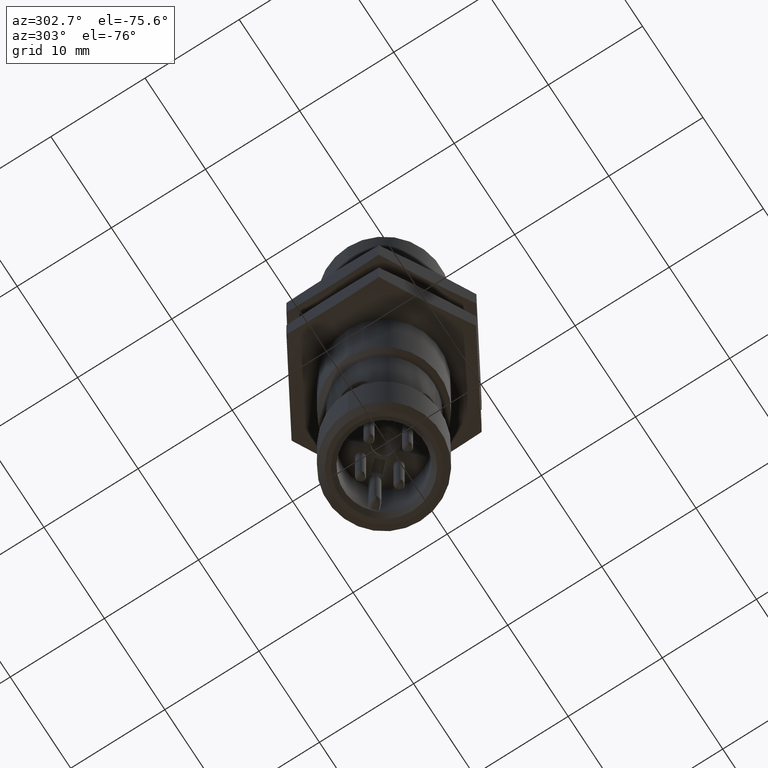
[diagram: clean part render]
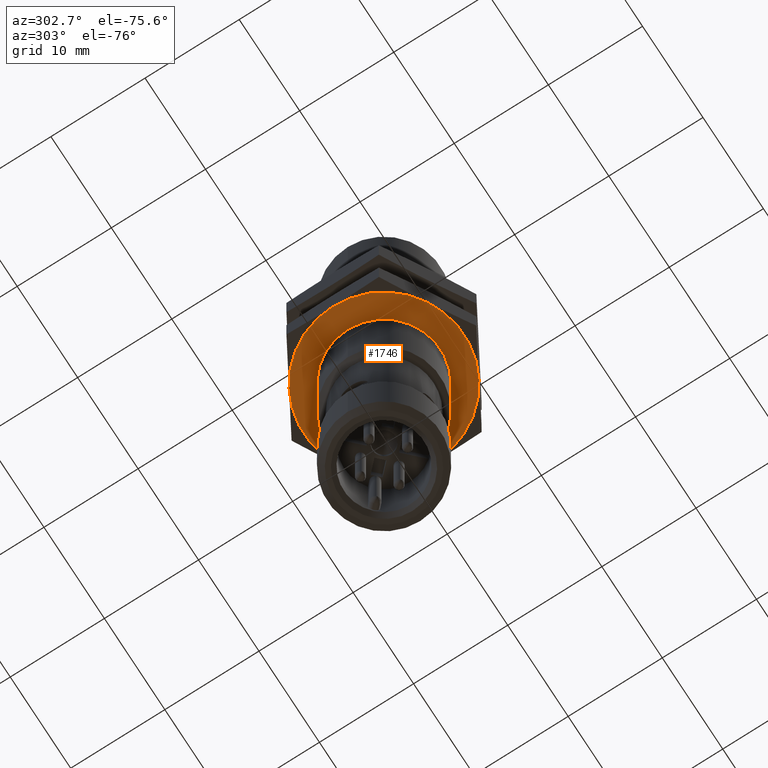
[diagram: same view with one face highlighted and labeled with its STEP entity id]
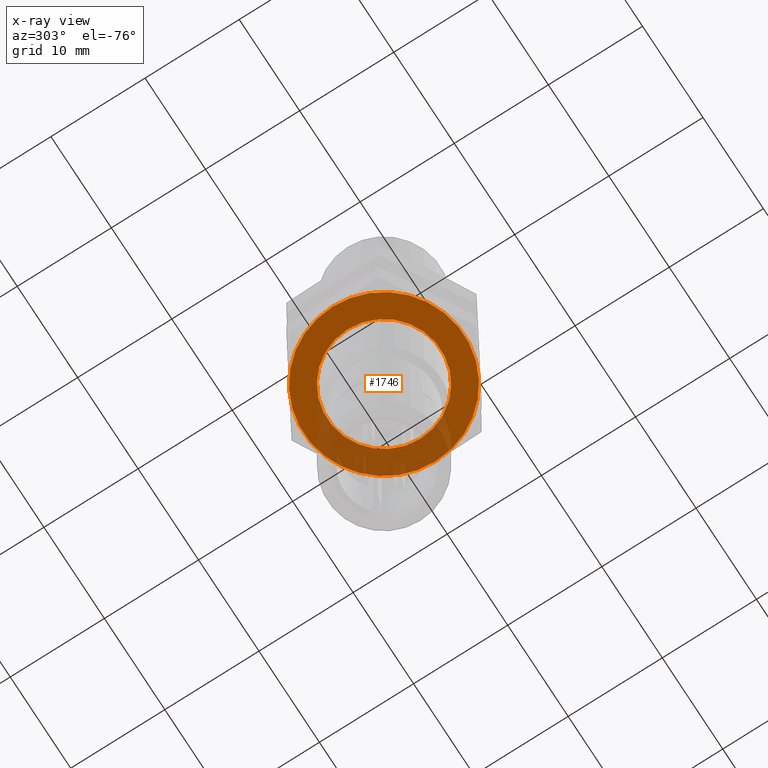
[diagram: x-ray of the same camera — body ghosted, the highlighted face saturated]
A machine part, auxiliary view. The second image highlights one B-rep face of the part: STEP entity #1746.
The next image is the same camera in x-ray: the body ghosted, the highlighted face saturated — about 31% of this face is hidden behind the body in this view.
In plain terms, the highlighted planar face has unit normal (0, 0, -1).
Its self-contained STEP definition (entity closure, byte-faithful):
#14 = CARTESIAN_POINT ( 'NONE',  ( 101.0540168275933581, -35.62113826423676244, -25.46057871481036372 ) ) ;
#29 = CARTESIAN_POINT ( 'NONE',  ( 101.0540168275933581, -35.62113826423676244, -25.12593304551902662 ) ) ;
#143 = AXIS2_PLACEMENT_3D ( 'NONE', #1288, #2727, #2245 ) ;
#150 = CIRCLE ( 'NONE', #926, 0.3346456692913279407 ) ;
#191 = CIRCLE ( 'NONE', #1329, 0.3346456692913279407 ) ;
#227 = EDGE_CURVE ( 'NONE', #2512, #1180, #191, .T. ) ;
#252 = AXIS2_PLACEMENT_3D ( 'NONE', #459, #1153, #900 ) ;
#283 = EDGE_LOOP ( 'NONE', ( #2044, #1486, #1829, #1216, #467, #2857 ) ) ;
#285 = DIRECTION ( 'NONE',  ( 1.000000000000000000, 0.0000000000000000000, 0.0000000000000000000 ) ) ;
#421 = CARTESIAN_POINT ( 'NONE',  ( 100.7642051767206084, -35.62113826423676244, -24.95861021087335274 ) ) ;
#453 = EDGE_CURVE ( 'NONE', #914, #914, #2464, .T. ) ;
#459 = CARTESIAN_POINT ( 'NONE',  ( 101.0540168275933581, -35.62113826423676244, -25.12593304551902662 ) ) ;
#467 = ORIENTED_EDGE ( 'NONE', *, *, #471, .T. ) ;
#471 = EDGE_CURVE ( 'NONE', #2195, #1644, #1743, .T. ) ;
#481 = CARTESIAN_POINT ( 'NONE',  ( 101.0540168275933581, -35.62113826423676244, -25.12593304551902662 ) ) ;
#482 = FACE_BOUND ( 'NONE', #889, .T. ) ;
#488 = EDGE_CURVE ( 'NONE', #1180, #2142, #1392, .T. ) ;
#608 = DIRECTION ( 'NONE',  ( 5.651229879563076124E-15, 1.000000000000000000, 0.0000000000000000000 ) ) ;
#696 = CARTESIAN_POINT ( 'NONE',  ( 101.0540168275933581, -35.62113826423676244, -25.12593304551902662 ) ) ;
#889 = EDGE_LOOP ( 'NONE', ( #2295 ) ) ;
#900 = DIRECTION ( 'NONE',  ( 1.000000000000000000, 0.0000000000000000000, 0.0000000000000000000 ) ) ;
#914 = VERTEX_POINT ( 'NONE', #2581 ) ;
#926 = AXIS2_PLACEMENT_3D ( 'NONE', #29, #1955, #285 ) ;
#972 = DIRECTION ( 'NONE',  ( 0.0000000000000000000, 1.000000000000000000, 0.0000000000000000000 ) ) ;
#1001 = PLANE ( 'NONE',  #2255 ) ;
#1153 = DIRECTION ( 'NONE',  ( 5.651229879563076124E-15, 1.000000000000000000, 0.0000000000000000000 ) ) ;
#1167 = AXIS2_PLACEMENT_3D ( 'NONE', #696, #2335, #1885 ) ;
#1180 = VERTEX_POINT ( 'NONE', #14 ) ;
#1184 = DIRECTION ( 'NONE',  ( 1.000000000000000000, 0.0000000000000000000, 0.0000000000000000000 ) ) ;
#1216 = ORIENTED_EDGE ( 'NONE', *, *, #2237, .T. ) ;
#1288 = CARTESIAN_POINT ( 'NONE',  ( 101.0540168275933581, -35.62113826423676244, -25.12593304551902662 ) ) ;
#1329 = AXIS2_PLACEMENT_3D ( 'NONE', #2968, #608, #2951 ) ;
#1365 = CARTESIAN_POINT ( 'NONE',  ( 100.7642051767206084, -35.62113826423676244, -25.29325588016469695 ) ) ;
#1368 = AXIS2_PLACEMENT_3D ( 'NONE', #2841, #2325, #2602 ) ;
#1386 = CIRCLE ( 'NONE', #252, 0.3346456692913279407 ) ;
#1392 = CIRCLE ( 'NONE', #1815, 0.3346456692913279407 ) ;
#1486 = ORIENTED_EDGE ( 'NONE', *, *, #227, .T. ) ;
#1513 = EDGE_CURVE ( 'NONE', #1644, #1539, #1386, .T. ) ;
#1539 = VERTEX_POINT ( 'NONE', #1540 ) ;
#1540 = CARTESIAN_POINT ( 'NONE',  ( 101.3438284784660937, -35.62113826423676244, -24.95861021087335274 ) ) ;
#1644 = VERTEX_POINT ( 'NONE', #1890 ) ;
#1691 = DIRECTION ( 'NONE',  ( 0.0000000000000000000, -0.0000000000000000000, 1.000000000000000000 ) ) ;
#1743 = CIRCLE ( 'NONE', #1167, 0.3346456692913279407 ) ;
#1746 = ADVANCED_FACE ( 'NONE', ( #2238, #482 ), #1001, .T. ) ;
#1815 = AXIS2_PLACEMENT_3D ( 'NONE', #481, #2096, #1184 ) ;
#1829 = ORIENTED_EDGE ( 'NONE', *, *, #488, .T. ) ;
#1885 = DIRECTION ( 'NONE',  ( 1.000000000000000000, 0.0000000000000000000, 0.0000000000000000000 ) ) ;
#1890 = CARTESIAN_POINT ( 'NONE',  ( 101.0540168275933581, -35.62113826423676244, -24.79128737622768952 ) ) ;
#1947 = CARTESIAN_POINT ( 'NONE',  ( 100.8866939929476985, -35.62113826423676244, -25.12593304551902662 ) ) ;
#1955 = DIRECTION ( 'NONE',  ( 5.651229879562947540E-15, 1.000000000000000000, 1.277455966066609031E-28 ) ) ;
#2006 = EDGE_CURVE ( 'NONE', #1539, #2512, #3001, .T. ) ;
#2044 = ORIENTED_EDGE ( 'NONE', *, *, #2006, .T. ) ;
#2096 = DIRECTION ( 'NONE',  ( 5.651229879563076124E-15, 1.000000000000000000, 0.0000000000000000000 ) ) ;
#2142 = VERTEX_POINT ( 'NONE', #1365 ) ;
#2195 = VERTEX_POINT ( 'NONE', #421 ) ;
#2237 = EDGE_CURVE ( 'NONE', #2142, #2195, #150, .T. ) ;
#2238 = FACE_OUTER_BOUND ( 'NONE', #283, .T. ) ;
#2245 = DIRECTION ( 'NONE',  ( 1.000000000000000000, 0.0000000000000000000, 0.0000000000000000000 ) ) ;
#2255 = AXIS2_PLACEMENT_3D ( 'NONE', #1947, #972, #1691 ) ;
#2295 = ORIENTED_EDGE ( 'NONE', *, *, #453, .T. ) ;
#2325 = DIRECTION ( 'NONE',  ( -0.0000000000000000000, -1.000000000000000000, 0.0000000000000000000 ) ) ;
#2335 = DIRECTION ( 'NONE',  ( 5.651229879563076124E-15, 1.000000000000000000, 0.0000000000000000000 ) ) ;
#2464 = CIRCLE ( 'NONE', #1368, 0.2362204724414259105 ) ;
#2512 = VERTEX_POINT ( 'NONE', #2805 ) ;
#2581 = CARTESIAN_POINT ( 'NONE',  ( 101.0540168275933581, -35.62113826423610163, -24.88971257307759899 ) ) ;
#2602 = DIRECTION ( 'NONE',  ( 0.0000000000000000000, 0.0000000000000000000, 1.000000000000000000 ) ) ;
#2727 = DIRECTION ( 'NONE',  ( 5.651229879562947540E-15, 1.000000000000000000, 1.277455966066609031E-28 ) ) ;
#2805 = CARTESIAN_POINT ( 'NONE',  ( 101.3438284784660937, -35.62113826423676244, -25.29325588016469695 ) ) ;
#2841 = CARTESIAN_POINT ( 'NONE',  ( 101.0540168275933581, -35.62113826423610163, -25.12593304551902662 ) ) ;
#2857 = ORIENTED_EDGE ( 'NONE', *, *, #1513, .T. ) ;
#2951 = DIRECTION ( 'NONE',  ( 1.000000000000000000, 0.0000000000000000000, 0.0000000000000000000 ) ) ;
#2968 = CARTESIAN_POINT ( 'NONE',  ( 101.0540168275933581, -35.62113826423676244, -25.12593304551902662 ) ) ;
#3001 = CIRCLE ( 'NONE', #143, 0.3346456692913279407 ) ;